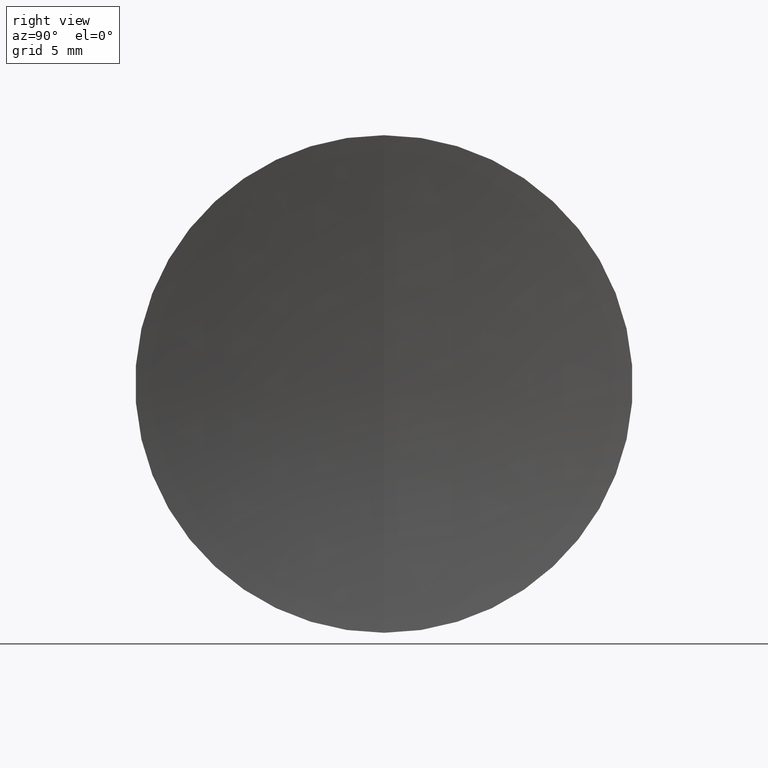
[diagram: clean part render]
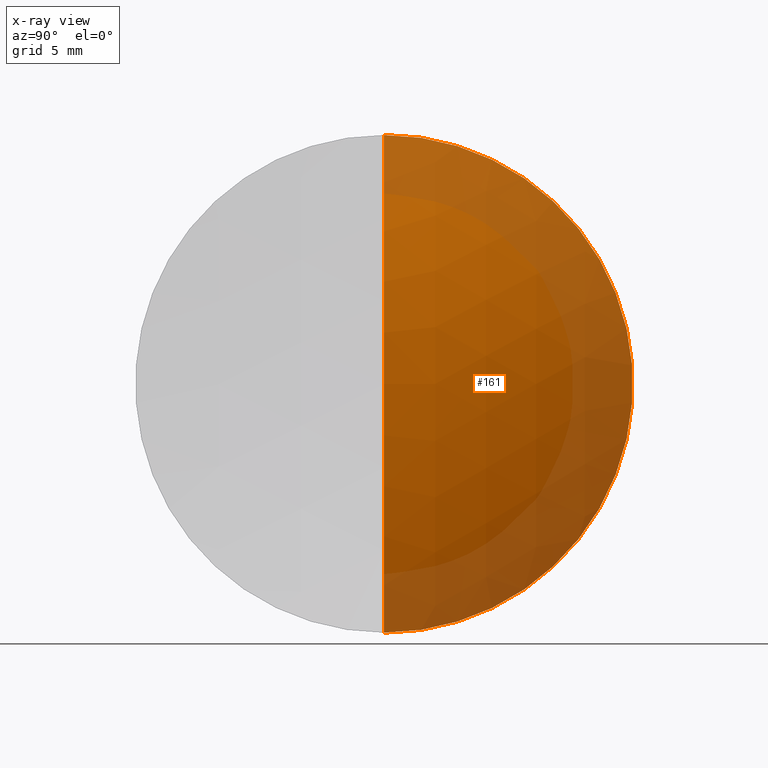
[diagram: x-ray — body ghosted, one internal face saturated and labeled with its STEP entity id]
A machine part, right view, then the same camera in x-ray: the body is ghosted and one INTERNAL B-rep face — a face not visible from any outside direction — is saturated and labeled: STEP entity #161.
In plain terms, the highlighted spherical surface has radius 29.38 mm.
Its self-contained STEP definition (entity closure, byte-faithful):
#6 = VERTEX_POINT ( 'NONE', #75 ) ;
#8 = EDGE_CURVE ( 'NONE', #241, #327, #228, .T. ) ;
#15 = EDGE_CURVE ( 'NONE', #241, #6, #224, .T. ) ;
#23 = ORIENTED_EDGE ( 'NONE', *, *, #8, .F. ) ;
#24 = DIRECTION ( 'NONE',  ( 0.0000000000000000000, 0.0000000000000000000, 1.000000000000000000 ) ) ;
#36 = EDGE_CURVE ( 'NONE', #327, #6, #191, .T. ) ;
#60 = ORIENTED_EDGE ( 'NONE', *, *, #36, .F. ) ;
#65 = AXIS2_PLACEMENT_3D ( 'NONE', #87, #174, #106 ) ;
#72 = AXIS2_PLACEMENT_3D ( 'NONE', #78, #236, #226 ) ;
#75 = CARTESIAN_POINT ( 'NONE',  ( 38.94353614673029500, 1.555301434917138000E-015, -12.69999999999999400 ) ) ;
#76 = CARTESIAN_POINT ( 'NONE',  ( 38.94353614673029500, 0.0000000000000000000, 12.69999999999999400 ) ) ;
#78 = CARTESIAN_POINT ( 'NONE',  ( 12.45024643027568300, 0.0000000000000000000, -1.105140665658876700E-014 ) ) ;
#87 = CARTESIAN_POINT ( 'NONE',  ( 12.45024643027568300, 0.0000000000000000000, -1.105140665658876700E-014 ) ) ;
#89 = DIRECTION ( 'NONE',  ( -1.000000000000000000, -0.0000000000000000000, -0.0000000000000000000 ) ) ;
#102 = AXIS2_PLACEMENT_3D ( 'NONE', #313, #273, #123 ) ;
#106 = DIRECTION ( 'NONE',  ( 0.0000000000000000000, -1.224646799147353200E-016, 1.000000000000000000 ) ) ;
#121 = SPHERICAL_SURFACE ( 'NONE', #72, 29.37999999999999900 ) ;
#123 = DIRECTION ( 'NONE',  ( 0.0000000000000000000, 0.0000000000000000000, -1.000000000000000000 ) ) ;
#129 = FACE_OUTER_BOUND ( 'NONE', #171, .T. ) ;
#158 = AXIS2_PLACEMENT_3D ( 'NONE', #264, #89, #24 ) ;
#161 = ADVANCED_FACE ( 'NONE', ( #129 ), #121, .T. ) ;
#171 = EDGE_LOOP ( 'NONE', ( #23, #299, #60 ) ) ;
#174 = DIRECTION ( 'NONE',  ( -0.0000000000000000000, 1.000000000000000000, 1.224646799147353200E-016 ) ) ;
#191 = CIRCLE ( 'NONE', #158, 12.69999999999999400 ) ;
#202 = CARTESIAN_POINT ( 'NONE',  ( 41.83024643027568600, 0.0000000000000000000, -9.252400508641304000E-015 ) ) ;
#224 = CIRCLE ( 'NONE', #65, 29.37999999999999900 ) ;
#226 = DIRECTION ( 'NONE',  ( 0.0000000000000000000, 0.0000000000000000000, 1.000000000000000000 ) ) ;
#228 = CIRCLE ( 'NONE', #102, 29.37999999999999900 ) ;
#236 = DIRECTION ( 'NONE',  ( 0.0000000000000000000, 1.000000000000000000, 0.0000000000000000000 ) ) ;
#241 = VERTEX_POINT ( 'NONE', #202 ) ;
#264 = CARTESIAN_POINT ( 'NONE',  ( 38.94353614673029500, 0.0000000000000000000, 0.0000000000000000000 ) ) ;
#273 = DIRECTION ( 'NONE',  ( 0.0000000000000000000, -1.000000000000000000, 0.0000000000000000000 ) ) ;
#299 = ORIENTED_EDGE ( 'NONE', *, *, #15, .T. ) ;
#313 = CARTESIAN_POINT ( 'NONE',  ( 12.45024643027568300, 0.0000000000000000000, -1.105140665658876700E-014 ) ) ;
#327 = VERTEX_POINT ( 'NONE', #76 ) ;